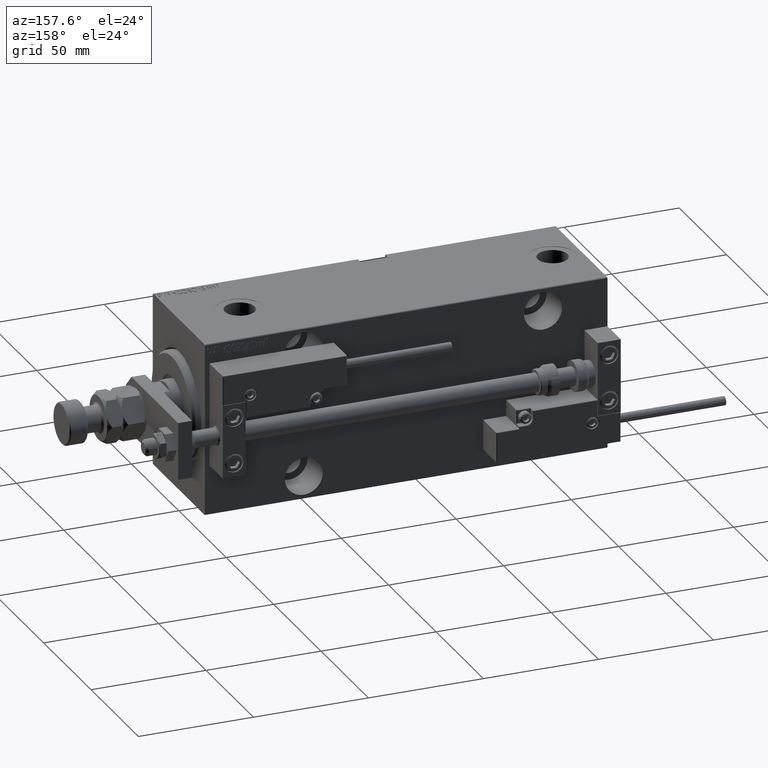
[diagram: clean part render]
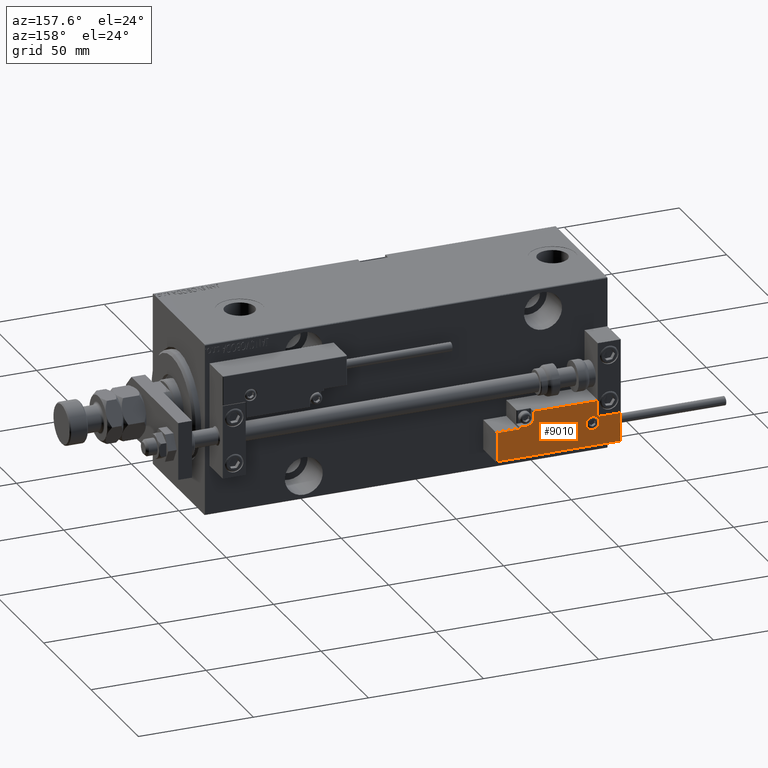
[diagram: same view with one face highlighted and labeled with its STEP entity id]
A machine part, auxiliary view. The second image highlights one B-rep face of the part: STEP entity #9010.
In plain terms, the highlighted planar face has unit normal (-0, 1, 0).
Its self-contained STEP definition (entity closure, byte-faithful):
#55 = CARTESIAN_POINT ( 'NONE',  ( -26.69999999999994600, 7.000000000000005329, 14.00000000000000000 ) ) ;
#467 = CARTESIAN_POINT ( 'NONE',  ( 26.70000000000006324, 20.00000000000001776, 14.00000000000000000 ) ) ;
#1378 = CARTESIAN_POINT ( 'NONE',  ( 16.69999999999999929, 7.300000000000009592, 14.00000000000000000 ) ) ;
#1893 = ORIENTED_EDGE ( 'NONE', *, *, #23681, .T. ) ;
#2083 = EDGE_CURVE ( 'NONE', #49009, #29119, #36433, .T. ) ;
#2663 = LINE ( 'NONE', #18988, #9073 ) ;
#3154 = CARTESIAN_POINT ( 'NONE',  ( -16.69999999999999218, 7.300000000000003375, 14.00000000000000000 ) ) ;
#3408 = EDGE_CURVE ( 'NONE', #16603, #49452, #11023, .T. ) ;
#4317 = EDGE_CURVE ( 'NONE', #49452, #16603, #34119, .T. ) ;
#5145 = CARTESIAN_POINT ( 'NONE',  ( -14.79999999999994920, 9.800000000000004263, 14.00000000000000000 ) ) ;
#5945 = EDGE_CURVE ( 'NONE', #29119, #10872, #50117, .T. ) ;
#6487 = AXIS2_PLACEMENT_3D ( 'NONE', #47343, #29373, #45428 ) ;
#6504 = CARTESIAN_POINT ( 'NONE',  ( 26.70000000000006324, 19.70000000000001705, 14.00000000000000000 ) ) ;
#6534 = DIRECTION ( 'NONE',  ( 0.000000000000000000, -0.000000000000000000, -1.000000000000000000 ) ) ;
#6573 = CARTESIAN_POINT ( 'NONE',  ( -17.59999999999994813, 9.800000000000004263, 14.00000000000000000 ) ) ;
#6708 = CARTESIAN_POINT ( 'NONE',  ( 10.69999999999999929, 0.3000000000000032085, 14.00000000000000000 ) ) ;
#7201 = VERTEX_POINT ( 'NONE', #48816 ) ;
#7792 = ORIENTED_EDGE ( 'NONE', *, *, #42750, .T. ) ;
#7990 = EDGE_CURVE ( 'NONE', #7201, #38073, #34946, .T. ) ;
#9010 = ADVANCED_FACE ( 'NONE', ( #13292, #29612 ), #28096, .T. ) ;
#9073 = VECTOR ( 'NONE', #47601, 1000.000000000000000 ) ;
#10338 = VERTEX_POINT ( 'NONE', #6708 ) ;
#10552 = CARTESIAN_POINT ( 'NONE',  ( -14.79999999999994920, 9.800000000000004263, 14.00000000000000000 ) ) ;
#10587 = DIRECTION ( 'NONE',  ( -8.006416042969869188E-16, -1.000000000000000000, 0.000000000000000000 ) ) ;
#10872 = VERTEX_POINT ( 'NONE', #3154 ) ;
#11023 = CIRCLE ( 'NONE', #17859, 2.800000000000000266 ) ;
#11869 = ORIENTED_EDGE ( 'NONE', *, *, #5945, .T. ) ;
#12530 = CARTESIAN_POINT ( 'NONE',  ( 16.69999999999999929, 6.300000000000003375, 14.00000000000000000 ) ) ;
#12817 = EDGE_CURVE ( 'NONE', #44731, #21148, #49668, .T. ) ;
#12907 = DIRECTION ( 'NONE',  ( 0.000000000000000000, -0.000000000000000000, -1.000000000000000000 ) ) ;
#13111 = CARTESIAN_POINT ( 'NONE',  ( -26.69999999999994600, 7.300000000000005151, 14.00000000000000000 ) ) ;
#13292 = FACE_BOUND ( 'NONE', #29682, .T. ) ;
#13679 = DIRECTION ( 'NONE',  ( 1.000000000000000000, -0.000000000000000000, 0.000000000000000000 ) ) ;
#14017 = ORIENTED_EDGE ( 'NONE', *, *, #3408, .T. ) ;
#14336 = CARTESIAN_POINT ( 'NONE',  ( 17.00000000000000000, 6.300000000000003375, 14.00000000000000000 ) ) ;
#16244 = VECTOR ( 'NONE', #42104, 1000.000000000000000 ) ;
#16546 = ORIENTED_EDGE ( 'NONE', *, *, #51991, .T. ) ;
#16603 = VERTEX_POINT ( 'NONE', #32237 ) ;
#17259 = LINE ( 'NONE', #46400, #25042 ) ;
#17571 = DIRECTION ( 'NONE',  ( 1.000000000000000000, 5.782411586589357639E-16, -0.000000000000000000 ) ) ;
#17594 = EDGE_CURVE ( 'NONE', #21148, #25177, #49949, .T. ) ;
#17859 = AXIS2_PLACEMENT_3D ( 'NONE', #5145, #12907, #36990 ) ;
#18012 = VECTOR ( 'NONE', #17571, 1000.000000000000000 ) ;
#18925 = EDGE_CURVE ( 'NONE', #34142, #7201, #30404, .T. ) ;
#18988 = CARTESIAN_POINT ( 'NONE',  ( 16.69999999999999929, 7.000000000000009770, 14.00000000000000000 ) ) ;
#19774 = EDGE_CURVE ( 'NONE', #38073, #44731, #2663, .T. ) ;
#21148 = VERTEX_POINT ( 'NONE', #22283 ) ;
#22106 = DIRECTION ( 'NONE',  ( 1.000000000000000000, -1.734723475976796001E-16, 0.000000000000000000 ) ) ;
#22283 = CARTESIAN_POINT ( 'NONE',  ( 26.70000000000006324, 7.300000000000007816, 14.00000000000000000 ) ) ;
#23142 = VECTOR ( 'NONE', #13679, 1000.000000000000000 ) ;
#23681 = EDGE_CURVE ( 'NONE', #25177, #49009, #44161, .T. ) ;
#25042 = VECTOR ( 'NONE', #50149, 1000.000000000000000 ) ;
#25177 = VERTEX_POINT ( 'NONE', #6504 ) ;
#25228 = CARTESIAN_POINT ( 'NONE',  ( -16.69999999999999218, 0.3000000000000032085, 14.00000000000000000 ) ) ;
#25618 = AXIS2_PLACEMENT_3D ( 'NONE', #10552, #6534, #39181 ) ;
#26535 = CARTESIAN_POINT ( 'NONE',  ( 11.00000000000000000, 0.3000000000000032085, 14.00000000000000000 ) ) ;
#27396 = ORIENTED_EDGE ( 'NONE', *, *, #18925, .T. ) ;
#27882 = VERTEX_POINT ( 'NONE', #25228 ) ;
#28096 = PLANE ( 'NONE',  #33434 ) ;
#28851 = VECTOR ( 'NONE', #46460, 1000.000000000000000 ) ;
#29119 = VERTEX_POINT ( 'NONE', #13111 ) ;
#29373 = DIRECTION ( 'NONE',  ( 0.000000000000000000, -0.000000000000000000, -1.000000000000000000 ) ) ;
#29612 = FACE_OUTER_BOUND ( 'NONE', #30974, .T. ) ;
#29682 = EDGE_LOOP ( 'NONE', ( #14017, #47726 ) ) ;
#30162 = LINE ( 'NONE', #42481, #41093 ) ;
#30404 = CIRCLE ( 'NONE', #6487, 3.299999999999997158 ) ;
#30801 = LINE ( 'NONE', #26535, #23142 ) ;
#30974 = EDGE_LOOP ( 'NONE', ( #16546, #7792, #45569, #27396, #44570, #49016, #34588, #43106, #1893, #50050, #11869 ) ) ;
#32237 = CARTESIAN_POINT ( 'NONE',  ( -11.99999999999994849, 9.800000000000004263, 14.00000000000000000 ) ) ;
#33434 = AXIS2_PLACEMENT_3D ( 'NONE', #33893, #33632, #41937 ) ;
#33632 = DIRECTION ( 'NONE',  ( -0.000000000000000000, 0.000000000000000000, 1.000000000000000000 ) ) ;
#33893 = CARTESIAN_POINT ( 'NONE',  ( 0.000000000000000000, 0.000000000000000000, 14.00000000000000000 ) ) ;
#34119 = CIRCLE ( 'NONE', #25618, 2.800000000000000266 ) ;
#34142 = VERTEX_POINT ( 'NONE', #36171 ) ;
#34588 = ORIENTED_EDGE ( 'NONE', *, *, #12817, .T. ) ;
#34946 = LINE ( 'NONE', #14336, #18012 ) ;
#36137 = VECTOR ( 'NONE', #22106, 1000.000000000000000 ) ;
#36146 = EDGE_CURVE ( 'NONE', #10338, #34142, #30162, .T. ) ;
#36171 = CARTESIAN_POINT ( 'NONE',  ( 10.69999999999999929, 3.000000000000003109, 14.00000000000000000 ) ) ;
#36433 = LINE ( 'NONE', #55, #49404 ) ;
#36633 = CARTESIAN_POINT ( 'NONE',  ( -26.99999999999993605, 19.70000000000002061, 14.00000000000000000 ) ) ;
#36990 = DIRECTION ( 'NONE',  ( 1.000000000000000000, 0.000000000000000000, 0.000000000000000000 ) ) ;
#37616 = CARTESIAN_POINT ( 'NONE',  ( 27.00000000000006395, 7.300000000000007816, 14.00000000000000000 ) ) ;
#38073 = VERTEX_POINT ( 'NONE', #12530 ) ;
#38453 = DIRECTION ( 'NONE',  ( -0.000000000000000000, 1.000000000000000000, -0.000000000000000000 ) ) ;
#39181 = DIRECTION ( 'NONE',  ( 1.000000000000000000, 0.000000000000000000, 0.000000000000000000 ) ) ;
#40879 = DIRECTION ( 'NONE',  ( 0.000000000000000000, 1.000000000000000000, -0.000000000000000000 ) ) ;
#41093 = VECTOR ( 'NONE', #38453, 1000.000000000000000 ) ;
#41937 = DIRECTION ( 'NONE',  ( 1.000000000000000000, 0.000000000000000000, 0.000000000000000000 ) ) ;
#42104 = DIRECTION ( 'NONE',  ( 1.000000000000000000, -1.734723475976815230E-16, 0.000000000000000000 ) ) ;
#42481 = CARTESIAN_POINT ( 'NONE',  ( 10.69999999999999929, 3.000000000000003109, 14.00000000000000000 ) ) ;
#42750 = EDGE_CURVE ( 'NONE', #27882, #10338, #30801, .T. ) ;
#43106 = ORIENTED_EDGE ( 'NONE', *, *, #17594, .T. ) ;
#44161 = LINE ( 'NONE', #36633, #28851 ) ;
#44570 = ORIENTED_EDGE ( 'NONE', *, *, #7990, .T. ) ;
#44731 = VERTEX_POINT ( 'NONE', #1378 ) ;
#44875 = VECTOR ( 'NONE', #40879, 1000.000000000000000 ) ;
#45428 = DIRECTION ( 'NONE',  ( 1.000000000000000000, 0.000000000000000000, 0.000000000000000000 ) ) ;
#45569 = ORIENTED_EDGE ( 'NONE', *, *, #36146, .T. ) ;
#45874 = CARTESIAN_POINT ( 'NONE',  ( -26.69999999999993534, 19.70000000000002061, 14.00000000000000000 ) ) ;
#46400 = CARTESIAN_POINT ( 'NONE',  ( -16.69999999999999218, 3.252606517456513302E-15, 14.00000000000000000 ) ) ;
#46460 = DIRECTION ( 'NONE',  ( -1.000000000000000000, 6.424901762877063495E-17, -0.000000000000000000 ) ) ;
#47343 = CARTESIAN_POINT ( 'NONE',  ( 13.99999999999999822, 3.000000000000002665, 14.00000000000000000 ) ) ;
#47601 = DIRECTION ( 'NONE',  ( 9.912705577010318647E-16, 1.000000000000000000, 0.000000000000000000 ) ) ;
#47726 = ORIENTED_EDGE ( 'NONE', *, *, #4317, .T. ) ;
#48816 = CARTESIAN_POINT ( 'NONE',  ( 13.99999999999999822, 6.300000000000001599, 14.00000000000000000 ) ) ;
#49009 = VERTEX_POINT ( 'NONE', #45874 ) ;
#49016 = ORIENTED_EDGE ( 'NONE', *, *, #19774, .T. ) ;
#49404 = VECTOR ( 'NONE', #10587, 1000.000000000000000 ) ;
#49452 = VERTEX_POINT ( 'NONE', #6573 ) ;
#49592 = CARTESIAN_POINT ( 'NONE',  ( -16.99999999999999289, 7.300000000000003375, 14.00000000000000000 ) ) ;
#49668 = LINE ( 'NONE', #37616, #36137 ) ;
#49949 = LINE ( 'NONE', #467, #44875 ) ;
#50050 = ORIENTED_EDGE ( 'NONE', *, *, #2083, .T. ) ;
#50117 = LINE ( 'NONE', #49592, #16244 ) ;
#50149 = DIRECTION ( 'NONE',  ( 0.000000000000000000, -1.000000000000000000, 0.000000000000000000 ) ) ;
#51991 = EDGE_CURVE ( 'NONE', #10872, #27882, #17259, .T. ) ;